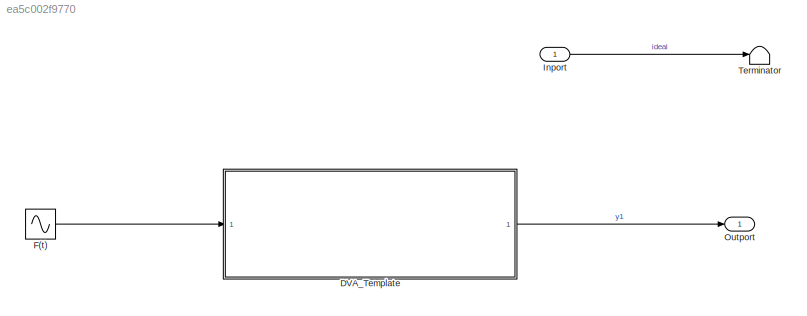
MODEL slx_ea5c002f9770
KIND model
CONFIG AbsTol = auto
CONFIG EnableMultiTasking = off
CONFIG FixedStep = auto
CONFIG MaxStep = 0.001
CONFIG MinStep = auto
CONFIG RelTol = 1e-3
CONFIG SampleTimeConstraint = Unconstrained
CONFIG SolverName = VariableStepAuto
CONFIG StartTime = 0.0
CONFIG StopTime = 10
WORKSPACE source: mxarray member
WORKSPACE b = 100
WORKSPACE k1 = 100
WORKSPACE k2 = 400
WORKSPACE m1 = 20
WORKSPACE m2 = 200
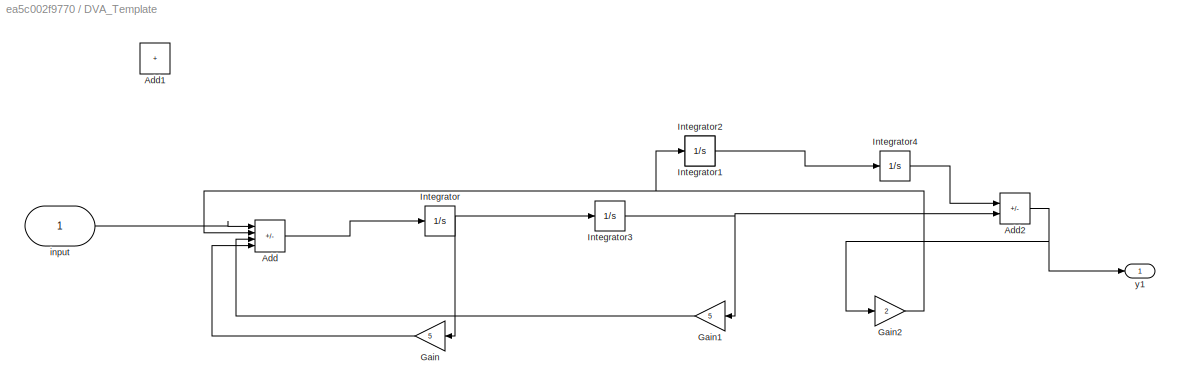
BLOCK [SubSystem] DVA_Template
BLOCK [Sum] DVA_Template/Add
  IconShape = rectangular
  Inputs = ++--
BLOCK [Sum] DVA_Template/Add1
  IconShape = rectangular
BLOCK [Sum] DVA_Template/Add2
  IconShape = rectangular
  Inputs = +-
BLOCK [Gain] DVA_Template/Gain
  Gain = 5
  NameLocation = top
BLOCK [Gain] DVA_Template/Gain1
  Gain = 5
  NameLocation = top
BLOCK [Gain] DVA_Template/Gain2
  Gain = 2
BLOCK [Integrator] DVA_Template/Integrator
BLOCK [Integrator] DVA_Template/Integrator1
BLOCK [Integrator] DVA_Template/Integrator2
BLOCK [Integrator] DVA_Template/Integrator3
BLOCK [Integrator] DVA_Template/Integrator4
BLOCK [Inport] DVA_Template/input
BLOCK [Outport] DVA_Template/y1
BLOCK [Sin] F(t)
  Frequency = 2
  SampleTime = 0
BLOCK [Inport] Inport
BLOCK [Outport] Outport
BLOCK [Terminator] Terminator
NET DVA_Template/Add2:1 -> DVA_Template/Gain2:1, DVA_Template/y1:1
LINE DVA_Template/Add:1 -> DVA_Template/Integrator:1
LINE DVA_Template/Gain1:1 -> DVA_Template/Add:3
NET DVA_Template/Gain2:1 -> DVA_Template/Add:2, DVA_Template/Integrator2:1
LINE DVA_Template/Gain:1 -> DVA_Template/Add:4
LINE DVA_Template/Integrator2:1 -> DVA_Template/Integrator4:1
NET DVA_Template/Integrator3:1 -> DVA_Template/Add2:2, DVA_Template/Gain1:1
LINE DVA_Template/Integrator4:1 -> DVA_Template/Add2:1
NET DVA_Template/Integrator:1 -> DVA_Template/Gain:1, DVA_Template/Integrator3:1
LINE DVA_Template/input:1 -> DVA_Template/Add:1
LINE DVA_Template:1 -> Outport:1
LINE F(t):1 -> DVA_Template:1
LINE Inport:1 -> Terminator:1
note: NET lines group one-source signal fan-out (src -> all destinations, sorted); 1:1 wires keep LINE
